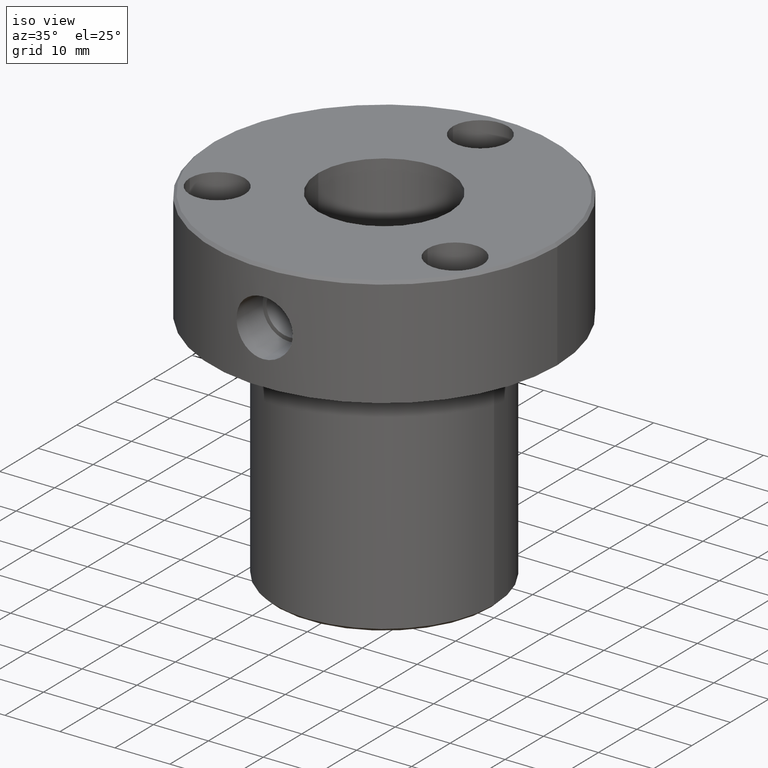
[diagram: clean part render]
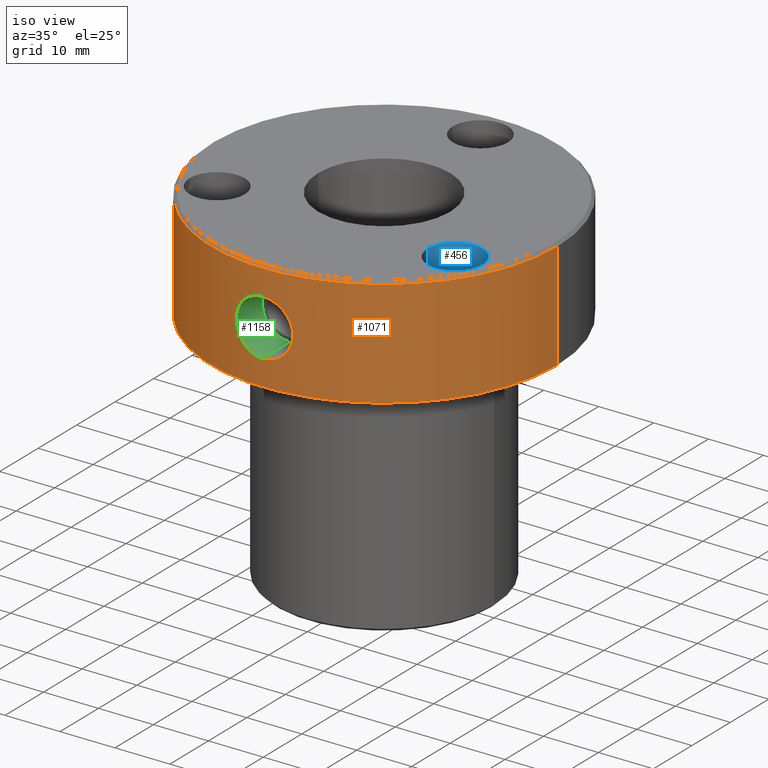
[diagram: same view with three faces highlighted in distinct colors, each labeled with its STEP entity id]
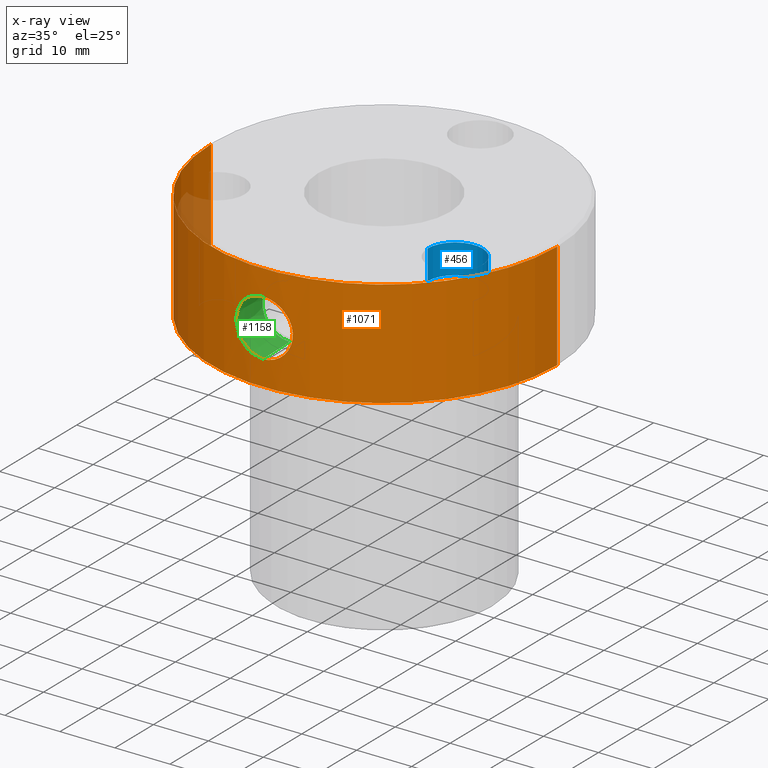
[diagram: x-ray of the same camera — body ghosted, the three highlighted faces saturated]
A machine part, iso view with three faces highlighted in distinct colors.
The next image is the same camera in x-ray (body ghosted, the three faces saturated) — at least one of them is partly hidden behind the body in this view.
Their STEP definitions:

[orange] entity #1071 — the highlighted cylindrical surface (partial cylindrical patch) has radius 31.5 mm, axis along (-0, -0, 1).
#23 = CARTESIAN_POINT ( 'NONE',  ( -0.1675630498953195602, -31.49999999999999289, -15.39337299999998798 ) ) ;
#26 = CARTESIAN_POINT ( 'NONE',  ( 3.392577882394762323, -31.31768352007677336, -14.12313902032865975 ) ) ;
#34 = CARTESIAN_POINT ( 'NONE',  ( -4.451694874726374707, -31.18441232983012412, -7.670897753639112082 ) ) ;
#38 = CARTESIAN_POINT ( 'NONE',  ( 4.082377604487185785, -31.23490388621969061, -13.38350829592921087 ) ) ;
#56 = VECTOR ( 'NONE', #1255, 1000.000000000000000 ) ;
#58 = B_SPLINE_CURVE_WITH_KNOTS ( 'NONE', 3,
 ( #89, #475, #1223, #434, #535, #61, #334, #821, #26, #881, #38, #313, #417, #905, #1134, #1124, #243, #365, #570, #947, #1236, #743, #1136, #937, #460, #183, #278, #192, #859, #943, #197, #393, #842, #578, #665, #951, #88, #1059, #581, #965 ),
 .UNSPECIFIED., .F., .F.,
 ( 4, 2, 2, 2, 2, 2, 2, 2, 2, 2, 2, 2, 2, 2, 2, 2, 2, 2, 2, 4 ),
 ( 0.004162008923113693151, 0.005167744192718995433, 0.006173479462324296847, 0.007179214731929599996, 0.008184950001534902278, 0.009190685271140204560, 0.01019642054074550858, 0.01120215581035080912, 0.01170502344515346113, 0.01220789107995611314, 0.01321362634956141716, 0.01421936161916671944, 0.01522509688877202345, 0.01572796452357467373, 0.01623083215837732574, 0.01723656742798263322, 0.01824230269758793724, 0.01874517033239058925, 0.01924803796719324472, 0.02025377323679854874 ),
 .UNSPECIFIED. ) ;
#61 = CARTESIAN_POINT ( 'NONE',  ( 2.275906060090903793, -31.41920215810174000, -14.87188786386862738 ) ) ;
#64 = CARTESIAN_POINT ( 'NONE',  ( -4.612496138182724970, -31.16073865657662623, -7.972473504924429299 ) ) ;
#72 = VECTOR ( 'NONE', #1064, 1000.000000000000000 ) ;
#83 = CARTESIAN_POINT ( 'NONE',  ( -9.772567479587839719E-14, -31.50000000000020961, -5.106626999998714389 ) ) ;
#88 = CARTESIAN_POINT ( 'NONE',  ( 1.165729546598521571, -31.47885630537491153, -5.238291229756740996 ) ) ;
#89 = CARTESIAN_POINT ( 'NONE',  ( 3.469453123382869688E-15, -31.50000000000000000, -15.39337299999999509 ) ) ;
#98 = CARTESIAN_POINT ( 'NONE',  ( -4.966712007347240387, -31.10604798142800220, -11.58406843877422432 ) ) ;
#106 = CARTESIAN_POINT ( 'NONE',  ( -4.080978841796701673, -31.23509399249391549, -13.38556862998713903 ) ) ;
#110 = CARTESIAN_POINT ( 'NONE',  ( 31.50000000000000000, 0.000000000000000000, -0.5000000000000005551 ) ) ;
#115 = AXIS2_PLACEMENT_3D ( 'NONE', #853, #671, #379 ) ;
#120 = VERTEX_POINT ( 'NONE', #363 ) ;
#123 = CARTESIAN_POINT ( 'NONE',  ( -3.868766672552418129, -31.26243386244336619, -6.854851957125377204 ) ) ;
#140 = VERTEX_POINT ( 'NONE', #1137 ) ;
#170 = LINE ( 'NONE', #362, #56 ) ;
#178 = DIRECTION ( 'NONE',  ( 1.000000000000000000, 0.000000000000000000, 0.000000000000000000 ) ) ;
#183 = CARTESIAN_POINT ( 'NONE',  ( 4.173563541805559218, -31.22243177385723101, -7.253570568143165254 ) ) ;
#192 = CARTESIAN_POINT ( 'NONE',  ( 3.859207426211678449, -31.26288628882880616, -6.856458993284471504 ) ) ;
#197 = CARTESIAN_POINT ( 'NONE',  ( 3.133698975952346366, -31.34501010464462567, -6.163299309523029734 ) ) ;
#202 = CARTESIAN_POINT ( 'NONE',  ( -1.655634719621374096, -31.45799249277633791, -15.12984270095671846 ) ) ;
#206 = CARTESIAN_POINT ( 'NONE',  ( -5.098402914937243402, -31.08473478902125464, -10.91910798902401858 ) ) ;
#213 = CARTESIAN_POINT ( 'NONE',  ( -3.127390646994665957, -31.34463980152736440, -6.169051752806164579 ) ) ;
#226 = VERTEX_POINT ( 'NONE', #507 ) ;
#242 = VERTEX_POINT ( 'NONE', #388 ) ;
#243 = CARTESIAN_POINT ( 'NONE',  ( 5.089441580894637163, -31.08613620900053220, -10.92300633721116832 ) ) ;
#262 = EDGE_CURVE ( 'NONE', #803, #140, #1041, .T. ) ;
#273 = CARTESIAN_POINT ( 'NONE',  ( -4.965651398854145526, -31.10621741704731136, -8.912339386753414416 ) ) ;
#275 = LINE ( 'NONE', #287, #72 ) ;
#278 = CARTESIAN_POINT ( 'NONE',  ( 4.072356555082452090, -31.23583604059677299, -7.116759613591058020 ) ) ;
#285 = CARTESIAN_POINT ( 'NONE',  ( -4.454254645784785360, -31.18405202307143753, -12.82489809447089613 ) ) ;
#287 = CARTESIAN_POINT ( 'NONE',  ( 31.50000000000000000, 0.000000000000000000, 0.000000000000000000 ) ) ;
#293 = ORIENTED_EDGE ( 'NONE', *, *, #319, .T. ) ;
#299 = CARTESIAN_POINT ( 'NONE',  ( -0.6770406131236045288, -31.49444071410571055, -5.140538297664423162 ) ) ;
#309 = CARTESIAN_POINT ( 'NONE',  ( -5.130717678206083932, -31.07934581213399738, -10.08065437731778324 ) ) ;
#310 = CARTESIAN_POINT ( 'NONE',  ( -1.334519425968438533, -31.47343701898237711, -5.272292468420128664 ) ) ;
#313 = CARTESIAN_POINT ( 'NONE',  ( 4.453239858586508504, -31.18418962309101161, -12.82638164466412967 ) ) ;
#319 = EDGE_CURVE ( 'NONE', #120, #1231, #275, .T. ) ;
#334 = CARTESIAN_POINT ( 'NONE',  ( 2.576464478240120037, -31.39570636234278922, -14.71060931308867126 ) ) ;
#336 = CARTESIAN_POINT ( 'NONE',  ( 0.000000000000000000, 0.000000000000000000, 0.000000000000000000 ) ) ;
#362 = CARTESIAN_POINT ( 'NONE',  ( -31.50000000000000000, 3.857637417314162689E-15, 0.000000000000000000 ) ) ;
#363 = CARTESIAN_POINT ( 'NONE',  ( 31.50000000000000000, 0.000000000000000000, -20.00000000000000000 ) ) ;
#365 = CARTESIAN_POINT ( 'NONE',  ( 5.122465983066386563, -31.08071141821243089, -10.58768122473574103 ) ) ;
#379 = DIRECTION ( 'NONE',  ( 1.000000000000000000, 0.000000000000000000, 0.000000000000000000 ) ) ;
#388 = CARTESIAN_POINT ( 'NONE',  ( -31.50000000000000000, 3.857637417314162689E-15, -20.00000000000000000 ) ) ;
#393 = CARTESIAN_POINT ( 'NONE',  ( 2.571297194215712789, -31.39614878406548470, -5.786216701329178314 ) ) ;
#396 = ORIENTED_EDGE ( 'NONE', *, *, #789, .T. ) ;
#401 = CARTESIAN_POINT ( 'NONE',  ( -9.772567479587839719E-14, -31.50000000000020961, -5.106626999998714389 ) ) ;
#417 = CARTESIAN_POINT ( 'NONE',  ( 4.610980735617624227, -31.16096817160007149, -12.53107147698502288 ) ) ;
#434 = CARTESIAN_POINT ( 'NONE',  ( 1.336415367724157477, -31.47340445795097352, -15.22751008621549573 ) ) ;
#446 = DIRECTION ( 'NONE',  ( 1.000000000000000000, 0.000000000000000000, 0.000000000000000000 ) ) ;
#455 = FACE_BOUND ( 'NONE', #1240, .T. ) ;
#457 = CIRCLE ( 'NONE', #1092, 31.50000000000000000 ) ;
#460 = CARTESIAN_POINT ( 'NONE',  ( 4.453635683173367887, -31.18414089315583837, -7.674024176918996076 ) ) ;
#475 = CARTESIAN_POINT ( 'NONE',  ( 0.3353453576430204808, -31.49999999999999289, -15.39337299999999864 ) ) ;
#478 = AXIS2_PLACEMENT_3D ( 'NONE', #336, #1110, #446 ) ;
#483 = CARTESIAN_POINT ( 'NONE',  ( -4.614207509948417218, -31.16048382452505550, -12.52398808746668379 ) ) ;
#484 = DIRECTION ( 'NONE',  ( -0.000000000000000000, -0.000000000000000000, 1.000000000000000000 ) ) ;
#505 = CARTESIAN_POINT ( 'NONE',  ( -4.869437043423324063, -31.12162023422767021, -11.90486274772561437 ) ) ;
#507 = CARTESIAN_POINT ( 'NONE',  ( -31.50000000000000000, 3.857637417314162689E-15, -0.5000000000000005551 ) ) ;
#510 = CARTESIAN_POINT ( 'NONE',  ( -4.080131788154743866, -31.23519944238895718, -7.113521688492904893 ) ) ;
#535 = CARTESIAN_POINT ( 'NONE',  ( 1.657396898507847105, -31.45789325696875238, -15.12919500493183378 ) ) ;
#570 = CARTESIAN_POINT ( 'NONE',  ( 5.130837226589495259, -31.07932607631504496, -10.41733963596846557 ) ) ;
#578 = CARTESIAN_POINT ( 'NONE',  ( 1.812282648736991186, -31.44820523642388821, -5.435232141050023280 ) ) ;
#581 = CARTESIAN_POINT ( 'NONE',  ( 0.3366100973040669353, -31.50000000000000000, -5.106626999999975602 ) ) ;
#596 = CARTESIAN_POINT ( 'NONE',  ( -5.130896919631678266, -31.07931622180228359, -10.58317388585338037 ) ) ;
#597 = CARTESIAN_POINT ( 'NONE',  ( -2.576827999614311970, -31.39566229856551161, -5.789751088459638595 ) ) ;
#607 = CARTESIAN_POINT ( 'NONE',  ( -3.386887148940125769, -31.31766293941403489, -6.382778049131897724 ) ) ;
#632 = CYLINDRICAL_SURFACE ( 'NONE', #478, 31.50000000000000000 ) ;
#665 = CARTESIAN_POINT ( 'NONE',  ( 1.654260685751130833, -31.45694824152356261, -5.378348575345545335 ) ) ;
#666 = CARTESIAN_POINT ( 'NONE',  ( -5.064493604089504331, -31.09022384105695735, -9.408808797311811745 ) ) ;
#667 = CARTESIAN_POINT ( 'NONE',  ( -0.3353667130378119587, -31.49866310069631581, -15.38516502314590717 ) ) ;
#671 = DIRECTION ( 'NONE',  ( 0.000000000000000000, 0.000000000000000000, -1.000000000000000000 ) ) ;
#689 = CARTESIAN_POINT ( 'NONE',  ( -1.655205305049651354, -31.45804026077873772, -5.369816319215269473 ) ) ;
#691 = CARTESIAN_POINT ( 'NONE',  ( -1.335606384995722706, -31.47340735662041666, -15.22752269674729142 ) ) ;
#697 = EDGE_CURVE ( 'NONE', #242, #120, #457, .T. ) ;
#727 = ORIENTED_EDGE ( 'NONE', *, *, #785, .F. ) ;
#743 = CARTESIAN_POINT ( 'NONE',  ( 4.966905104410310301, -31.10601603022917061, -8.917466357430962276 ) ) ;
#765 = EDGE_CURVE ( 'NONE', #140, #803, #58, .T. ) ;
#771 = CARTESIAN_POINT ( 'NONE',  ( -3.390222829753240852, -31.31794788186031298, -14.12535131313222081 ) ) ;
#785 = EDGE_CURVE ( 'NONE', #242, #226, #170, .T. ) ;
#789 = EDGE_CURVE ( 'NONE', #1231, #226, #1117, .T. ) ;
#794 = EDGE_LOOP ( 'NONE', ( #727, #972, #293, #396 ) ) ;
#799 = ORIENTED_EDGE ( 'NONE', *, *, #765, .F. ) ;
#803 = VERTEX_POINT ( 'NONE', #83 ) ;
#821 = CARTESIAN_POINT ( 'NONE',  ( 3.134681991975262427, -31.34489298127002144, -14.33574776624093161 ) ) ;
#831 = FACE_OUTER_BOUND ( 'NONE', #794, .T. ) ;
#842 = CARTESIAN_POINT ( 'NONE',  ( 2.275950067283664335, -31.41919755906950229, -5.628144779923813346 ) ) ;
#853 = CARTESIAN_POINT ( 'NONE',  ( 0.000000000000000000, 0.000000000000000000, -0.5000000000000005551 ) ) ;
#859 = CARTESIAN_POINT ( 'NONE',  ( 3.746879213934935837, -31.27658873943607531, -6.732282321489491572 ) ) ;
#868 = CARTESIAN_POINT ( 'NONE',  ( -0.6714663925119007670, -31.49329104503225452, -15.35194756755903001 ) ) ;
#878 = CARTESIAN_POINT ( 'NONE',  ( -5.122515217600781767, -31.08070329713656577, -9.913028021884798591 ) ) ;
#881 = CARTESIAN_POINT ( 'NONE',  ( 3.866415528860177364, -31.26272087822797729, -13.64775127927988940 ) ) ;
#896 = CARTESIAN_POINT ( 'NONE',  ( -4.868424305443068256, -31.12178013916284414, -8.592074121464550629 ) ) ;
#905 = CARTESIAN_POINT ( 'NONE',  ( 4.869390834944940849, -31.12163417354981831, -11.90570945242667555 ) ) ;
#937 = CARTESIAN_POINT ( 'NONE',  ( 4.610983382438159417, -31.16096412298885809, -7.969321119021823385 ) ) ;
#943 = CARTESIAN_POINT ( 'NONE',  ( 3.392932673877273153, -31.31763777728264486, -6.377295305653123414 ) ) ;
#947 = CARTESIAN_POINT ( 'NONE',  ( 5.130657840474292186, -31.07935569053308811, -9.909852961027835860 ) ) ;
#951 = CARTESIAN_POINT ( 'NONE',  ( 1.331074546105040390, -31.47228005148380703, -5.279836242022051707 ) ) ;
#954 = CARTESIAN_POINT ( 'NONE',  ( -3.866491077670896281, -31.26272088466694399, -13.64782522884890703 ) ) ;
#965 = CARTESIAN_POINT ( 'NONE',  ( -9.772567479587839719E-14, -31.50000000000020961, -5.106626999998714389 ) ) ;
#972 = ORIENTED_EDGE ( 'NONE', *, *, #697, .T. ) ;
#977 = CARTESIAN_POINT ( 'NONE',  ( -2.280086928615740138, -31.41893068276825574, -5.629928619322755345 ) ) ;
#986 = CARTESIAN_POINT ( 'NONE',  ( -3.512639453559862623, -31.30376408216540440, -6.497194538890540549 ) ) ;
#987 = ORIENTED_EDGE ( 'NONE', *, *, #262, .F. ) ;
#1041 = B_SPLINE_CURVE_WITH_KNOTS ( 'NONE', 3,
 ( #401, #1194, #299, #310, #689, #977, #597, #1089, #213, #607, #986, #123, #510, #34, #64, #896, #273, #666, #1060, #878, #309, #596, #206, #98, #505, #483, #285, #106, #954, #771, #1175, #1082, #1256, #202, #691, #1086, #868, #667, #23, #1183 ),
 .UNSPECIFIED., .F., .F.,
 ( 4, 2, 2, 2, 2, 2, 2, 2, 2, 2, 2, 2, 2, 2, 2, 2, 2, 2, 2, 4 ),
 ( 0.02025377323679855221, 0.02125885092952007824, 0.02226392862224160080, 0.02326900631496312682, 0.02377154516132388984, 0.02427408400768465285, 0.02527916170040617888, 0.02628423939312770491, 0.02728931708584923094, 0.02779185593220999048, 0.02829439477857075003, 0.02929947247129226565, 0.03030455016401378127, 0.03130962785673530036, 0.03231470554945681251, 0.03331978324217832466, 0.03432486093489984375, 0.03532993862762136283, 0.03583247747398211891, 0.03633501632034287498 ),
 .UNSPECIFIED. ) ;
#1059 = CARTESIAN_POINT ( 'NONE',  ( 0.6701198474174928643, -31.49460617425014419, -5.139513848346278557 ) ) ;
#1060 = CARTESIAN_POINT ( 'NONE',  ( -5.089515053184927140, -31.08612417337664269, -9.577531140353670480 ) ) ;
#1064 = DIRECTION ( 'NONE',  ( -0.000000000000000000, -0.000000000000000000, 1.000000000000000000 ) ) ;
#1071 = ADVANCED_FACE ( 'NONE', ( #831, #455 ), #632, .T. ) ;
#1082 = CARTESIAN_POINT ( 'NONE',  ( -2.576434490117962550, -31.39569727739237948, -14.71050425106655624 ) ) ;
#1086 = CARTESIAN_POINT ( 'NONE',  ( -0.8401433878439314995, -31.48922772712464635, -15.32676051504670411 ) ) ;
#1089 = CARTESIAN_POINT ( 'NONE',  ( -2.993104610847331593, -31.35778592654167696, -6.069120576231695097 ) ) ;
#1092 = AXIS2_PLACEMENT_3D ( 'NONE', #1148, #484, #178 ) ;
#1110 = DIRECTION ( 'NONE',  ( -0.000000000000000000, -0.000000000000000000, 1.000000000000000000 ) ) ;
#1117 = CIRCLE ( 'NONE', #115, 31.50000000000000000 ) ;
#1124 = CARTESIAN_POINT ( 'NONE',  ( 5.064819551378900719, -31.09017036019769264, -11.08896700139191793 ) ) ;
#1134 = CARTESIAN_POINT ( 'NONE',  ( 4.967041030467374441, -31.10599401816686793, -11.58183657534789646 ) ) ;
#1136 = CARTESIAN_POINT ( 'NONE',  ( 4.867664789323016272, -31.12190052561226139, -8.589729848178704330 ) ) ;
#1137 = CARTESIAN_POINT ( 'NONE',  ( 3.469453123382869688E-15, -31.50000000000000000, -15.39337299999999509 ) ) ;
#1148 = CARTESIAN_POINT ( 'NONE',  ( 0.000000000000000000, 0.000000000000000000, -20.00000000000000000 ) ) ;
#1175 = CARTESIAN_POINT ( 'NONE',  ( -3.132072014495783208, -31.34514232080539387, -14.33762505908508444 ) ) ;
#1183 = CARTESIAN_POINT ( 'NONE',  ( 3.469453123382869688E-15, -31.50000000000000000, -15.39337299999999509 ) ) ;
#1194 = CARTESIAN_POINT ( 'NONE',  ( -0.3363900125311793943, -31.50000000000000711, -5.106627000000005800 ) ) ;
#1223 = CARTESIAN_POINT ( 'NONE',  ( 0.6698377073421232231, -31.49464258655239490, -15.36072116753062033 ) ) ;
#1231 = VERTEX_POINT ( 'NONE', #110 ) ;
#1236 = CARTESIAN_POINT ( 'NONE',  ( 5.097562165116699795, -31.08487155453376261, -9.576089725178830392 ) ) ;
#1240 = EDGE_LOOP ( 'NONE', ( #799, #987 ) ) ;
#1255 = DIRECTION ( 'NONE',  ( -0.000000000000000000, -0.000000000000000000, 1.000000000000000000 ) ) ;
#1256 = CARTESIAN_POINT ( 'NONE',  ( -2.275449511140111625, -31.41924167644154053, -14.87216287977717144 ) ) ;

[blue] entity #456 — the highlighted cylindrical surface (edge-blend (fillet) strip) has radius 5 mm, axis along (-0, -0, 1).
#22 = AXIS2_PLACEMENT_3D ( 'NONE', #932, #1243, #439 ) ;
#35 = EDGE_LOOP ( 'NONE', ( #1049, #485, #744, #516 ) ) ;
#113 = CARTESIAN_POINT ( 'NONE',  ( 16.65063509461091940, -12.50000000000010125, 0.000000000000000000 ) ) ;
#143 = VERTEX_POINT ( 'NONE', #682 ) ;
#159 = EDGE_CURVE ( 'NONE', #251, #381, #1127, .T. ) ;
#182 = DIRECTION ( 'NONE',  ( -0.000000000000000000, -0.000000000000000000, 1.000000000000000000 ) ) ;
#191 = CYLINDRICAL_SURFACE ( 'NONE', #409, 4.999999999999997335 ) ;
#205 = CARTESIAN_POINT ( 'NONE',  ( 26.65063509461091584, -12.50000000000010125, 0.000000000000000000 ) ) ;
#233 = DIRECTION ( 'NONE',  ( 1.000000000000000000, 0.000000000000000000, 0.000000000000000000 ) ) ;
#251 = VERTEX_POINT ( 'NONE', #506 ) ;
#303 = DIRECTION ( 'NONE',  ( -0.000000000000000000, -0.000000000000000000, 1.000000000000000000 ) ) ;
#381 = VERTEX_POINT ( 'NONE', #486 ) ;
#407 = LINE ( 'NONE', #205, #498 ) ;
#409 = AXIS2_PLACEMENT_3D ( 'NONE', #677, #182, #1153 ) ;
#439 = DIRECTION ( 'NONE',  ( 1.000000000000000000, 0.000000000000000000, 0.000000000000000000 ) ) ;
#456 = ADVANCED_FACE ( 'NONE', ( #836 ), #191, .F. ) ;
#485 = ORIENTED_EDGE ( 'NONE', *, *, #673, .F. ) ;
#486 = CARTESIAN_POINT ( 'NONE',  ( 16.65063509461091584, -12.50000000000010125, 0.000000000000000000 ) ) ;
#498 = VECTOR ( 'NONE', #303, 1000.000000000000000 ) ;
#506 = CARTESIAN_POINT ( 'NONE',  ( 26.65063509461091940, -12.50000000000010125, 0.000000000000000000 ) ) ;
#516 = ORIENTED_EDGE ( 'NONE', *, *, #159, .T. ) ;
#591 = CARTESIAN_POINT ( 'NONE',  ( 21.65063509461091940, -12.50000000000010125, 0.000000000000000000 ) ) ;
#670 = AXIS2_PLACEMENT_3D ( 'NONE', #591, #1014, #233 ) ;
#673 = EDGE_CURVE ( 'NONE', #1097, #143, #761, .T. ) ;
#677 = CARTESIAN_POINT ( 'NONE',  ( 21.65063509461091940, -12.50000000000010125, 0.000000000000000000 ) ) ;
#682 = CARTESIAN_POINT ( 'NONE',  ( 16.65063509461091940, -12.50000000000010125, -5.400000000000000355 ) ) ;
#687 = DIRECTION ( 'NONE',  ( -0.000000000000000000, -0.000000000000000000, 1.000000000000000000 ) ) ;
#744 = ORIENTED_EDGE ( 'NONE', *, *, #883, .T. ) ;
#761 = CIRCLE ( 'NONE', #22, 4.999999999999997335 ) ;
#836 = FACE_OUTER_BOUND ( 'NONE', #35, .T. ) ;
#883 = EDGE_CURVE ( 'NONE', #1097, #251, #407, .T. ) ;
#886 = LINE ( 'NONE', #113, #1053 ) ;
#913 = CARTESIAN_POINT ( 'NONE',  ( 26.65063509461091584, -12.50000000000010125, -5.400000000000000355 ) ) ;
#932 = CARTESIAN_POINT ( 'NONE',  ( 21.65063509461091940, -12.50000000000010125, -5.400000000000000355 ) ) ;
#1014 = DIRECTION ( 'NONE',  ( -0.000000000000000000, -0.000000000000000000, 1.000000000000000000 ) ) ;
#1038 = EDGE_CURVE ( 'NONE', #143, #381, #886, .T. ) ;
#1049 = ORIENTED_EDGE ( 'NONE', *, *, #1038, .F. ) ;
#1053 = VECTOR ( 'NONE', #687, 1000.000000000000000 ) ;
#1097 = VERTEX_POINT ( 'NONE', #913 ) ;
#1127 = CIRCLE ( 'NONE', #670, 5.000000000000000888 ) ;
#1153 = DIRECTION ( 'NONE',  ( 1.000000000000000000, 0.000000000000000000, 0.000000000000000000 ) ) ;
#1243 = DIRECTION ( 'NONE',  ( -0.000000000000000000, -0.000000000000000000, 1.000000000000000000 ) ) ;

[green] entity #1158 — the highlighted conical surface has half-angle 1.715 deg.
#23 = CARTESIAN_POINT ( 'NONE',  ( -0.1675630498953195602, -31.49999999999999289, -15.39337299999998798 ) ) ;
#34 = CARTESIAN_POINT ( 'NONE',  ( -4.451694874726374707, -31.18441232983012412, -7.670897753639112082 ) ) ;
#64 = CARTESIAN_POINT ( 'NONE',  ( -4.612496138182724970, -31.16073865657662623, -7.972473504924429299 ) ) ;
#83 = CARTESIAN_POINT ( 'NONE',  ( -9.772567479587839719E-14, -31.50000000000020961, -5.106626999998714389 ) ) ;
#98 = CARTESIAN_POINT ( 'NONE',  ( -4.966712007347240387, -31.10604798142800220, -11.58406843877422432 ) ) ;
#106 = CARTESIAN_POINT ( 'NONE',  ( -4.080978841796701673, -31.23509399249391549, -13.38556862998713903 ) ) ;
#123 = CARTESIAN_POINT ( 'NONE',  ( -3.868766672552418129, -31.26243386244336619, -6.854851957125377204 ) ) ;
#140 = VERTEX_POINT ( 'NONE', #1137 ) ;
#177 = LINE ( 'NONE', #566, #817 ) ;
#180 = ORIENTED_EDGE ( 'NONE', *, *, #636, .T. ) ;
#199 = DIRECTION ( 'NONE',  ( -0.000000000000000000, -1.000000000000000000, -0.000000000000000000 ) ) ;
#202 = CARTESIAN_POINT ( 'NONE',  ( -1.655634719621374096, -31.45799249277633791, -15.12984270095671846 ) ) ;
#206 = CARTESIAN_POINT ( 'NONE',  ( -5.098402914937243402, -31.08473478902125464, -10.91910798902401858 ) ) ;
#213 = CARTESIAN_POINT ( 'NONE',  ( -3.127390646994665957, -31.34463980152736440, -6.169051752806164579 ) ) ;
#262 = EDGE_CURVE ( 'NONE', #803, #140, #1041, .T. ) ;
#269 = LINE ( 'NONE', #668, #938 ) ;
#273 = CARTESIAN_POINT ( 'NONE',  ( -4.965651398854145526, -31.10621741704731136, -8.912339386753414416 ) ) ;
#284 = CARTESIAN_POINT ( 'NONE',  ( 4.086726322877586219E-15, -24.58000000000000540, -5.313821067060072956 ) ) ;
#285 = CARTESIAN_POINT ( 'NONE',  ( -4.454254645784785360, -31.18405202307143753, -12.82489809447089613 ) ) ;
#299 = CARTESIAN_POINT ( 'NONE',  ( -0.6770406131236045288, -31.49444071410571055, -5.140538297664423162 ) ) ;
#309 = CARTESIAN_POINT ( 'NONE',  ( -5.130717678206083932, -31.07934581213399738, -10.08065437731778324 ) ) ;
#310 = CARTESIAN_POINT ( 'NONE',  ( -1.334519425968438533, -31.47343701898237711, -5.272292468420128664 ) ) ;
#331 = CARTESIAN_POINT ( 'NONE',  ( 3.469446951953614189E-15, -24.58000000000000540, -15.18617893293991727 ) ) ;
#341 = DIRECTION ( 'NONE',  ( 0.000000000000000000, 0.000000000000000000, -1.000000000000000000 ) ) ;
#350 = AXIS2_PLACEMENT_3D ( 'NONE', #1013, #618, #341 ) ;
#401 = CARTESIAN_POINT ( 'NONE',  ( -9.772567479587839719E-14, -31.50000000000020961, -5.106626999998714389 ) ) ;
#461 = ORIENTED_EDGE ( 'NONE', *, *, #473, .F. ) ;
#465 = DIRECTION ( 'NONE',  ( 0.000000000000000000, -0.9995520592605567911, -0.02992792722492342017 ) ) ;
#473 = EDGE_CURVE ( 'NONE', #830, #548, #690, .T. ) ;
#483 = CARTESIAN_POINT ( 'NONE',  ( -4.614207509948417218, -31.16048382452505550, -12.52398808746668379 ) ) ;
#505 = CARTESIAN_POINT ( 'NONE',  ( -4.869437043423324063, -31.12162023422767021, -11.90486274772561437 ) ) ;
#510 = CARTESIAN_POINT ( 'NONE',  ( -4.080131788154743866, -31.23519944238895718, -7.113521688492904893 ) ) ;
#548 = VERTEX_POINT ( 'NONE', #331 ) ;
#566 = CARTESIAN_POINT ( 'NONE',  ( 3.469446951953614189E-15, -31.50000000000000000, -15.39337299999999509 ) ) ;
#596 = CARTESIAN_POINT ( 'NONE',  ( -5.130896919631678266, -31.07931622180228359, -10.58317388585338037 ) ) ;
#597 = CARTESIAN_POINT ( 'NONE',  ( -2.576827999614311970, -31.39566229856551161, -5.789751088459638595 ) ) ;
#604 = DIRECTION ( 'NONE',  ( 0.000000000000000000, 0.000000000000000000, -1.000000000000000000 ) ) ;
#607 = CARTESIAN_POINT ( 'NONE',  ( -3.386887148940125769, -31.31766293941403489, -6.382778049131897724 ) ) ;
#617 = EDGE_LOOP ( 'NONE', ( #461, #180, #728, #1104 ) ) ;
#618 = DIRECTION ( 'NONE',  ( -0.000000000000000000, -1.000000000000000000, -0.000000000000000000 ) ) ;
#636 = EDGE_CURVE ( 'NONE', #830, #803, #269, .T. ) ;
#666 = CARTESIAN_POINT ( 'NONE',  ( -5.064493604089504331, -31.09022384105695735, -9.408808797311811745 ) ) ;
#667 = CARTESIAN_POINT ( 'NONE',  ( -0.3353667130378119587, -31.49866310069631581, -15.38516502314590717 ) ) ;
#668 = CARTESIAN_POINT ( 'NONE',  ( 4.099328480080705767E-15, -31.50000000000000000, -5.106626999999995142 ) ) ;
#689 = CARTESIAN_POINT ( 'NONE',  ( -1.655205305049651354, -31.45804026077873772, -5.369816319215269473 ) ) ;
#690 = CIRCLE ( 'NONE', #1068, 4.936178932939922603 ) ;
#691 = CARTESIAN_POINT ( 'NONE',  ( -1.335606384995722706, -31.47340735662041666, -15.22752269674729142 ) ) ;
#728 = ORIENTED_EDGE ( 'NONE', *, *, #262, .T. ) ;
#771 = CARTESIAN_POINT ( 'NONE',  ( -3.390222829753240852, -31.31794788186031298, -14.12535131313222081 ) ) ;
#803 = VERTEX_POINT ( 'NONE', #83 ) ;
#817 = VECTOR ( 'NONE', #465, 1000.000000000000227 ) ;
#830 = VERTEX_POINT ( 'NONE', #284 ) ;
#862 = EDGE_CURVE ( 'NONE', #548, #140, #177, .T. ) ;
#868 = CARTESIAN_POINT ( 'NONE',  ( -0.6714663925119007670, -31.49329104503225452, -15.35194756755903001 ) ) ;
#878 = CARTESIAN_POINT ( 'NONE',  ( -5.122515217600781767, -31.08070329713656577, -9.913028021884798591 ) ) ;
#896 = CARTESIAN_POINT ( 'NONE',  ( -4.868424305443068256, -31.12178013916284414, -8.592074121464550629 ) ) ;
#938 = VECTOR ( 'NONE', #1066, 1000.000000000000227 ) ;
#954 = CARTESIAN_POINT ( 'NONE',  ( -3.866491077670896281, -31.26272088466694399, -13.64782522884890703 ) ) ;
#977 = CARTESIAN_POINT ( 'NONE',  ( -2.280086928615740138, -31.41893068276825574, -5.629928619322755345 ) ) ;
#979 = CONICAL_SURFACE ( 'NONE', #350, 5.143372999999999529, 0.02993239667170296756 ) ;
#986 = CARTESIAN_POINT ( 'NONE',  ( -3.512639453559862623, -31.30376408216540440, -6.497194538890540549 ) ) ;
#1013 = CARTESIAN_POINT ( 'NONE',  ( 3.469446951953614189E-15, -31.50000000000000000, -10.24999999999999467 ) ) ;
#1041 = B_SPLINE_CURVE_WITH_KNOTS ( 'NONE', 3,
 ( #401, #1194, #299, #310, #689, #977, #597, #1089, #213, #607, #986, #123, #510, #34, #64, #896, #273, #666, #1060, #878, #309, #596, #206, #98, #505, #483, #285, #106, #954, #771, #1175, #1082, #1256, #202, #691, #1086, #868, #667, #23, #1183 ),
 .UNSPECIFIED., .F., .F.,
 ( 4, 2, 2, 2, 2, 2, 2, 2, 2, 2, 2, 2, 2, 2, 2, 2, 2, 2, 2, 4 ),
 ( 0.02025377323679855221, 0.02125885092952007824, 0.02226392862224160080, 0.02326900631496312682, 0.02377154516132388984, 0.02427408400768465285, 0.02527916170040617888, 0.02628423939312770491, 0.02728931708584923094, 0.02779185593220999048, 0.02829439477857075003, 0.02929947247129226565, 0.03030455016401378127, 0.03130962785673530036, 0.03231470554945681251, 0.03331978324217832466, 0.03432486093489984375, 0.03532993862762136283, 0.03583247747398211891, 0.03633501632034287498 ),
 .UNSPECIFIED. ) ;
#1060 = CARTESIAN_POINT ( 'NONE',  ( -5.089515053184927140, -31.08612417337664269, -9.577531140353670480 ) ) ;
#1066 = DIRECTION ( 'NONE',  ( 3.665114028111739322E-18, -0.9995520592605567911, 0.02992792722492342017 ) ) ;
#1068 = AXIS2_PLACEMENT_3D ( 'NONE', #1079, #199, #604 ) ;
#1079 = CARTESIAN_POINT ( 'NONE',  ( 3.469446951953614189E-15, -24.58000000000000540, -10.24999999999999467 ) ) ;
#1082 = CARTESIAN_POINT ( 'NONE',  ( -2.576434490117962550, -31.39569727739237948, -14.71050425106655624 ) ) ;
#1086 = CARTESIAN_POINT ( 'NONE',  ( -0.8401433878439314995, -31.48922772712464635, -15.32676051504670411 ) ) ;
#1089 = CARTESIAN_POINT ( 'NONE',  ( -2.993104610847331593, -31.35778592654167696, -6.069120576231695097 ) ) ;
#1104 = ORIENTED_EDGE ( 'NONE', *, *, #862, .F. ) ;
#1119 = FACE_OUTER_BOUND ( 'NONE', #617, .T. ) ;
#1137 = CARTESIAN_POINT ( 'NONE',  ( 3.469453123382869688E-15, -31.50000000000000000, -15.39337299999999509 ) ) ;
#1158 = ADVANCED_FACE ( 'NONE', ( #1119 ), #979, .F. ) ;
#1175 = CARTESIAN_POINT ( 'NONE',  ( -3.132072014495783208, -31.34514232080539387, -14.33762505908508444 ) ) ;
#1183 = CARTESIAN_POINT ( 'NONE',  ( 3.469453123382869688E-15, -31.50000000000000000, -15.39337299999999509 ) ) ;
#1194 = CARTESIAN_POINT ( 'NONE',  ( -0.3363900125311793943, -31.50000000000000711, -5.106627000000005800 ) ) ;
#1256 = CARTESIAN_POINT ( 'NONE',  ( -2.275449511140111625, -31.41924167644154053, -14.87216287977717144 ) ) ;